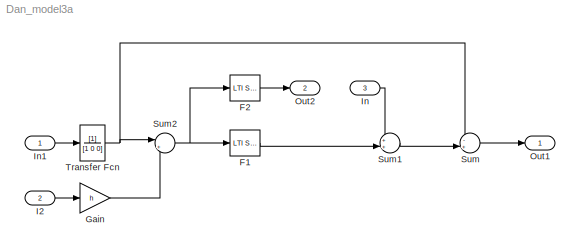
MODEL Dan_model3a
KIND model
BLOCK [Reference] F1  REF=cstblocks/LTI System
  IC = []
  Ports = [1, 1]
  SID = 21
  SourceBlock = cstblocks/LTI System
  SourceType = LTI Block
  sys = F1
BLOCK [Reference] F2  REF=cstblocks/LTI System
  IC = []
  Ports = [1, 1]
  SID = 20
  SourceBlock = cstblocks/LTI System
  SourceType = LTI Block
  sys = F2
BLOCK [Gain] Gain
  Gain = h
  OutDataTypeStr = Inherit: Inherit via internal rule
  ParamDataTypeStr = Inherit: Inherit via internal rule
  SID = 22
  SaturateOnIntegerOverflow = off
BLOCK [Inport] I2
  IconDisplay = Port number
  Port = 2
  SID = 14
BLOCK [Inport] In
  IconDisplay = Port number
  Port = 3
  SID = 15
BLOCK [Inport] In1
  IconDisplay = Port number
  SID = 4
BLOCK [Outport] Out1
  IconDisplay = Port number
  SID = 1
BLOCK [Outport] Out2
  IconDisplay = Port number
  Port = 2
  SID = 13
BLOCK [Sum] Sum
  IconShape = round
  InputSameDT = off
  Inputs = -+|
  OutDataTypeStr = Inherit: Inherit via internal rule
  Ports = [2, 1]
  SID = 16
  SaturateOnIntegerOverflow = off
BLOCK [Sum] Sum1
  IconShape = round
  InputSameDT = off
  Inputs = ++|
  OutDataTypeStr = Inherit: Inherit via internal rule
  Ports = [2, 1]
  SID = 17
  SaturateOnIntegerOverflow = off
BLOCK [Sum] Sum2
  IconShape = round
  InputSameDT = off
  Inputs = |++
  OutDataTypeStr = Inherit: Inherit via internal rule
  Ports = [2, 1]
  SID = 18
  SaturateOnIntegerOverflow = off
BLOCK [TransferFcn] Transfer Fcn
  Denominator = [1 0 0]
  SID = 23
LINE F1:1 -> Sum1:2
LINE F2:1 -> Out2:1
LINE Gain:1 -> Sum2:2
LINE I2:1 -> Gain:1
LINE In1:1 -> Transfer Fcn:1
LINE In:1 -> Sum1:1
LINE Sum1:1 -> Sum:2
NET Sum2:1 -> F1:1, F2:1
LINE Sum:1 -> Out1:1
NET Transfer Fcn:1 -> Sum2:1, Sum:1
note: NET lines group one-source signal fan-out (src -> all destinations, sorted); 1:1 wires keep LINE
